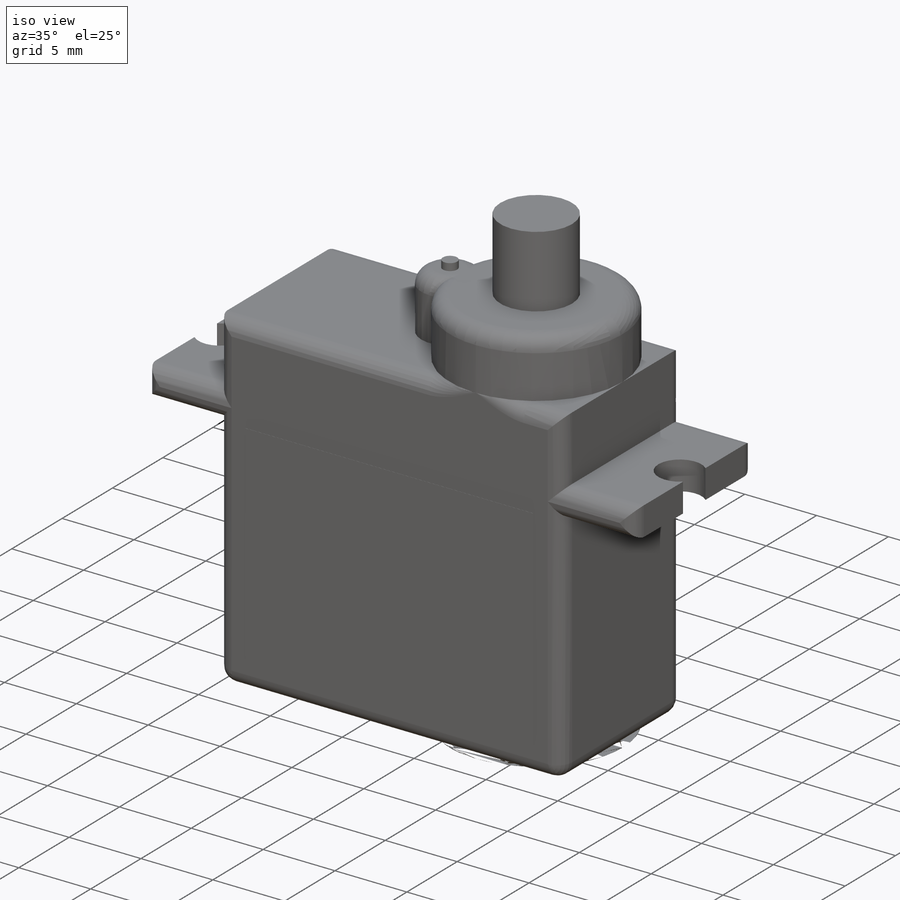
[diagram: iso view]
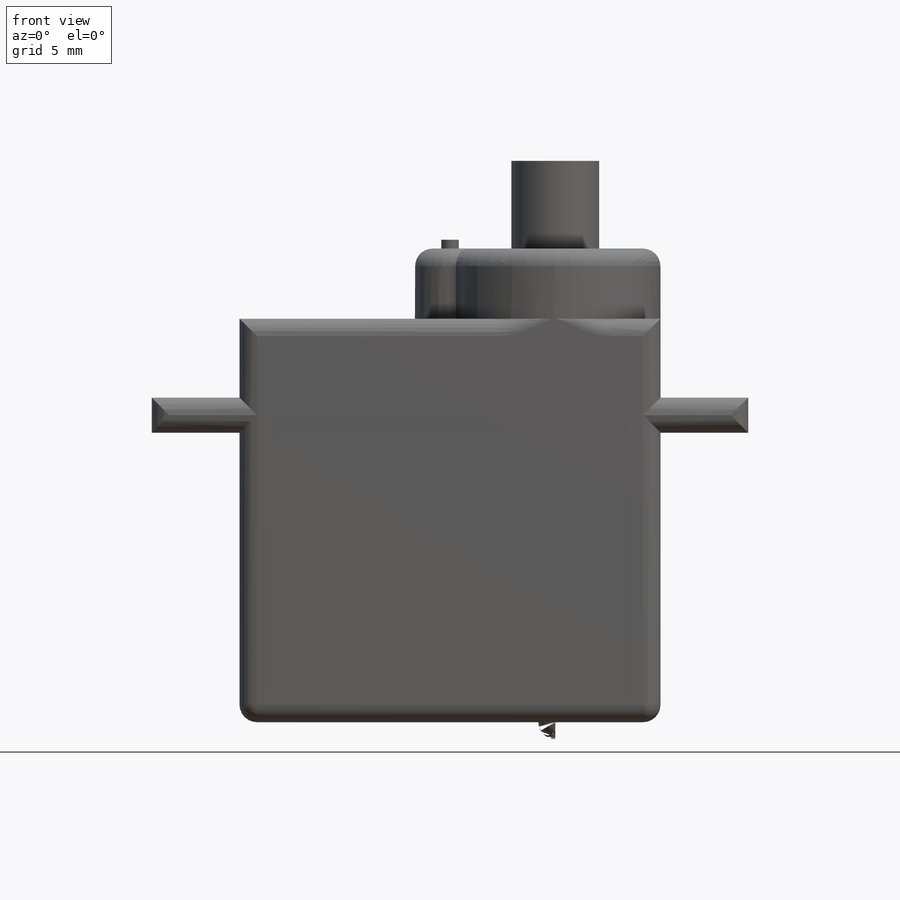
[diagram: front view]
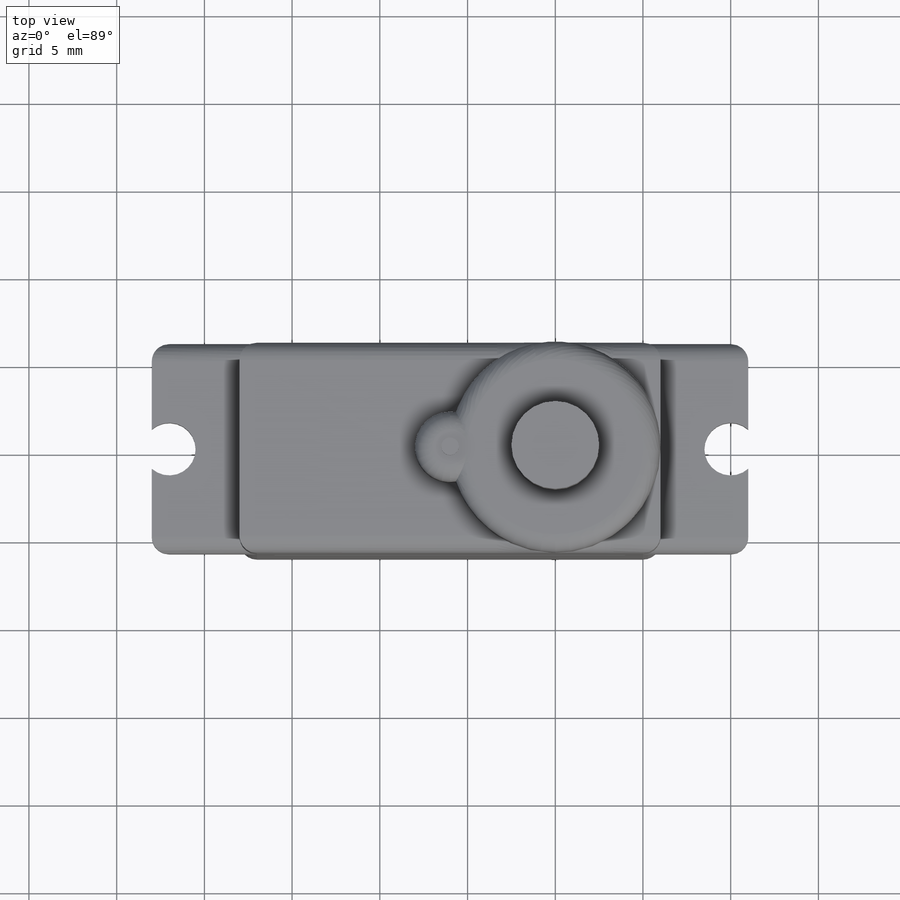
[diagram: top view]
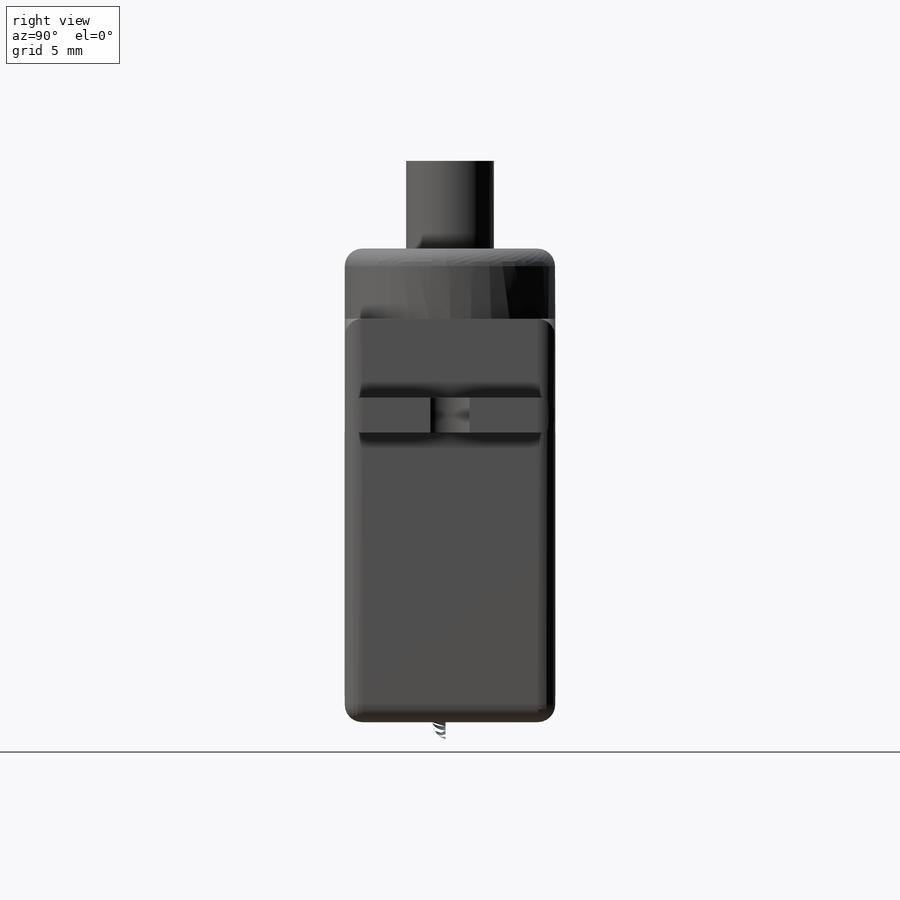
[diagram: right view]
SOLIDWORKS PART (.sldprt)
format: sldprt  version: not decoded by parser v0  size: 468,480 bytes
history: native  units: mm
features: sketch x9, extrude x8, fillet x4, plane x3, material x1, cut_extrude x1, mirror x1 (+9 scaffold rows collapsed)
feature tree (36):
  scaffold x9  (default folders/planes/origin — collapsed)
  material  "ABS"
  plane  "Plan de face"
  plane  "Plan de dessus"
  plane  "Plan de droite"
  sketch  "Esquisse1"  dims[D1=12.0mm D2=24.0mm D3=6.0mm D4=6.0mm]
  extrude  "Boss.-Extru.1"  Depth=23mm
  sketch  "Esquisse3"  dims[D1=12.0mm]
  extrude  "Boss.-Extru.2"  Depth=4mm
  sketch  "Esquisse4"  dims[D1=4.0mm D2=6.0mm D3=12.0mm]
  extrude  "Boss.-Extru.3"  Depth=4mm
  sketch  "Esquisse5"  dims[D2=1.0mm D1=0.0mm]
  extrude  "Boss.-Extru.4"  Depth=0.5mm
  sketch  "Esquisse6"  dims[D1=5.0mm]
  extrude  "Boss.-Extru.5"  Depth=5mm
  sketch  "Esquisse7"  dims[D1=2.0mm D2=4.5mm]
  extrude  "Boss.-Extru.6"  Depth=5mm
  sketch  "Esquisse8"  dims[D1=2.0mm D2=4.5mm]
  extrude  "Boss.-Extru.7"  Depth=5mm
  sketch  "Esquisse9"  dims[c1.D1=3.0mm c1.D2=3.0mm c1.D3=6.0mm c1.D4=6.0mm c1.D5=~6.368799mm c2.D5=90.0deg c3.D5=1.0mm c3.D6=1.0mm c3.D7=32.0mm]
  cut_extrude  "Enlèv. mat.-Extru.1"  Depth=5mm
  fillet  "Congé1"  Radius=1mm
  fillet  "Congé2"  Radius=1mm
  fillet  "Congé5"  Radius=1mm
  fillet  "Congé6"  Radius=1mm
  sketch  "Esquisse10"  dims[c1.D1=~15.272766mm c1.D2=~20.211304mm c2.D1=20.0mm c2.D2=15.0mm c2.D3=20.0mm c2.D4=0.0mm]
  extrude  "Boss.-Extru.8"  Depth=0.01mm
  mirror  "Symétrie1"
decode coverage: 22 of 23 modeling features carry decoded parameters
note: ~ marks probable driven/reference dimensions
note: suppression state not decoded; provenance and decode notes live in map.json
